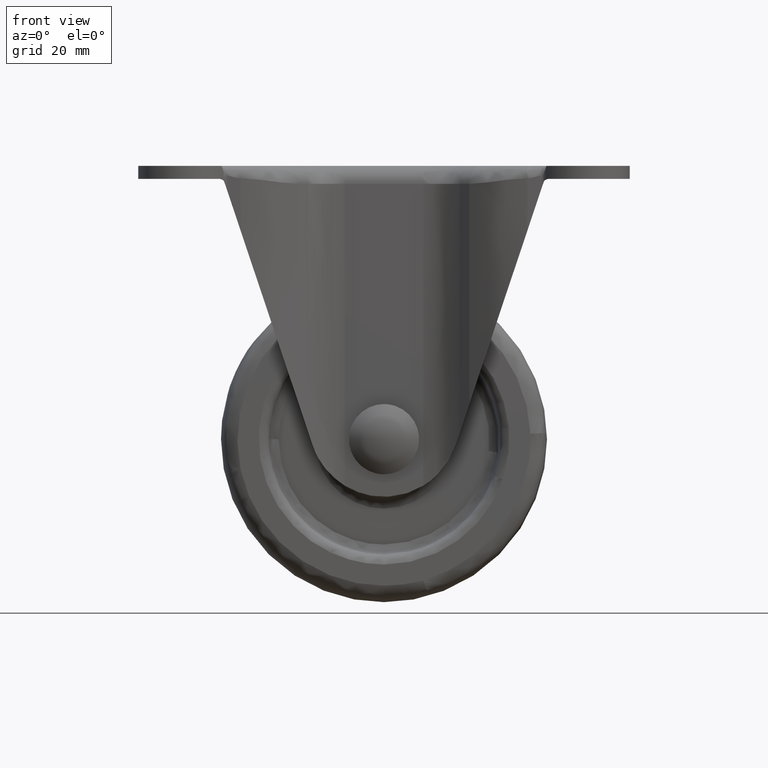
[diagram: clean part render]
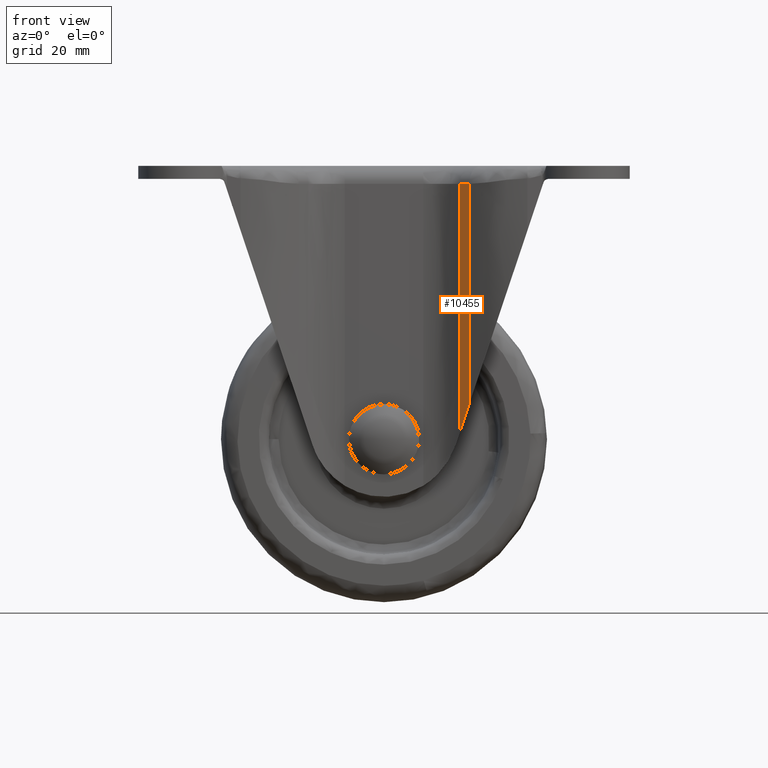
[diagram: same view with one face highlighted and labeled with its STEP entity id]
A machine part, front view. The second image highlights one B-rep face of the part: STEP entity #10455.
In plain terms, the highlighted face is a freeform B-spline surface patch.
Its self-contained STEP definition (entity closure, byte-faithful):
#5629=CARTESIAN_POINT('',(17.011995972972599,-23.267688771869000,-3.600000000000050));
#5630=VERTEX_POINT('',#5629);
#5696=CARTESIAN_POINT('',(15.115070568387649,-21.550897656329902,-3.600000000000050));
#5697=VERTEX_POINT('',#5696);
#5713=CARTESIAN_POINT('',(17.011995972972588,-23.267688771869000,-3.600000000000050));
#5714=CARTESIAN_POINT('',(15.994089705815489,-22.486023144249060,-3.600000000000050));
#5715=CARTESIAN_POINT('',(15.115070568387649,-21.550897656329902,-3.600000000000050));
#5723=(BOUNDED_CURVE()B_SPLINE_CURVE(2,(#5713,#5714,#5715),.UNSPECIFIED.,.F.,.U.)CURVE()GEOMETRIC_REPRESENTATION_ITEM()QUASI_UNIFORM_CURVE()RATIONAL_B_SPLINE_CURVE((1.0,0.996743614139851,1.0))REPRESENTATION_ITEM(''));
#5724=EDGE_CURVE('',#5630,#5697,#5723,.T.);
#8531=CARTESIAN_POINT('',(17.011995972972599,-23.267688771869000,-47.445385678694201));
#8532=VERTEX_POINT('',#8531);
#8546=CARTESIAN_POINT('',(15.115070568387649,-21.550897656329902,-53.104016684462103));
#8547=VERTEX_POINT('',#8546);
#8548=CARTESIAN_POINT('',(17.011995972972599,-23.267688771869000,-47.445385678694201));
#8549=CARTESIAN_POINT('',(15.994089525751820,-22.486023291336249,-50.481855625953344));
#8550=CARTESIAN_POINT('',(15.115070568387649,-21.550897656329902,-53.104016684462103));
#8558=(BOUNDED_CURVE()B_SPLINE_CURVE(2,(#8548,#8549,#8550),.UNSPECIFIED.,.F.,.U.)CURVE()GEOMETRIC_REPRESENTATION_ITEM()QUASI_UNIFORM_CURVE()RATIONAL_B_SPLINE_CURVE((1.0,0.996743615359353,1.0))REPRESENTATION_ITEM(''));
#8559=EDGE_CURVE('',#8532,#8547,#8558,.T.);
#10422=CARTESIAN_POINT('',(17.011995972972599,-23.267688771869000,-47.445385678694201));
#10423=CARTESIAN_POINT('',(17.011995972972599,-23.267688771869000,-3.600000000000050));
#10424=QUASI_UNIFORM_CURVE('',1,(#10422,#10423),.UNSPECIFIED.,.F.,.U.);
#10425=EDGE_CURVE('',#8532,#5630,#10424,.T.);
#10431=CARTESIAN_POINT('',(17.113563662327280,-23.345036458768387,-54.341617101573647));
#10432=CARTESIAN_POINT('',(17.113563662327280,-23.345036458768387,-2.331459572460709));
#10433=CARTESIAN_POINT('',(15.986700035281709,-22.494028535413058,-54.341617101573661));
#10434=CARTESIAN_POINT('',(15.986700035281709,-22.494028535413058,-2.331459572460709));
#10435=CARTESIAN_POINT('',(15.027861149566624,-21.457368460551216,-54.341617101573647));
#10436=CARTESIAN_POINT('',(15.027861149566624,-21.457368460551216,-2.331459572460708));
#10444=(BOUNDED_SURFACE()B_SPLINE_SURFACE(1,2,((#10431,#10433,#10435),(#10432,#10434,#10436)),.UNSPECIFIED.,.F.,.F.,.U.)B_SPLINE_SURFACE_WITH_KNOTS((2,2),(3,3),(0.0,52.010157529112952),(0.0,2.818634271635344),.UNSPECIFIED.)GEOMETRIC_REPRESENTATION_ITEM()RATIONAL_B_SPLINE_SURFACE(((0.998063561228200,0.993266542861384,0.996324508023163),(0.998063561228200,0.993266542861384,0.996324508023163)))REPRESENTATION_ITEM('')SURFACE());
#10445=ORIENTED_EDGE('',*,*,#10425,.T.);
#10446=ORIENTED_EDGE('',*,*,#5724,.T.);
#10447=CARTESIAN_POINT('',(15.115070568387649,-21.550897656329902,-53.104016684462103));
#10448=CARTESIAN_POINT('',(15.115070568387649,-21.550897656329902,-3.600000000000050));
#10449=QUASI_UNIFORM_CURVE('',1,(#10447,#10448),.UNSPECIFIED.,.F.,.U.);
#10450=EDGE_CURVE('',#8547,#5697,#10449,.T.);
#10451=ORIENTED_EDGE('',*,*,#10450,.F.);
#10452=ORIENTED_EDGE('',*,*,#8559,.F.);
#10453=EDGE_LOOP('',(#10445,#10446,#10451,#10452));
#10454=FACE_OUTER_BOUND('',#10453,.T.);
#10455=ADVANCED_FACE('',(#10454),#10444,.T.);